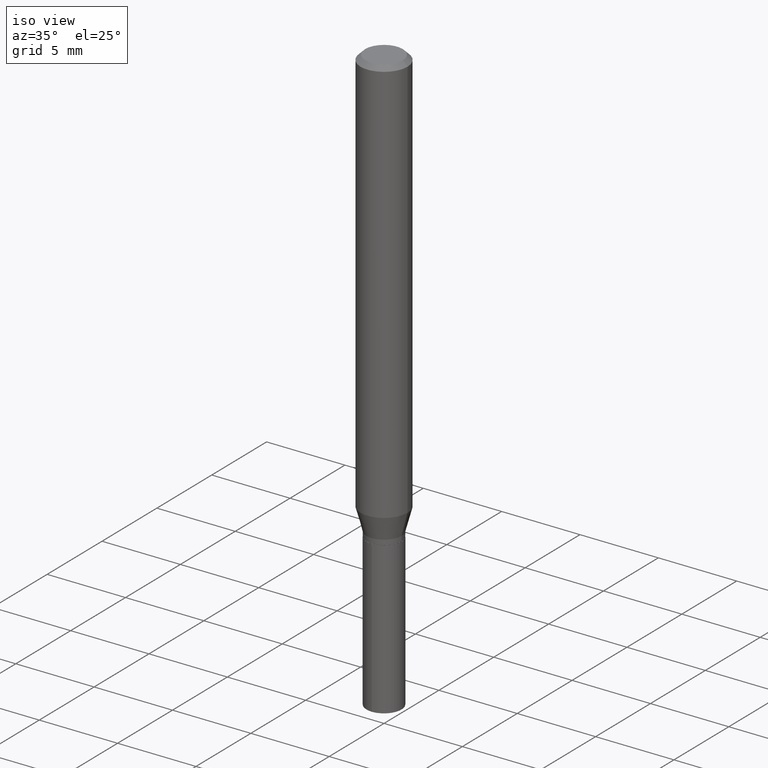
[diagram: clean part render]
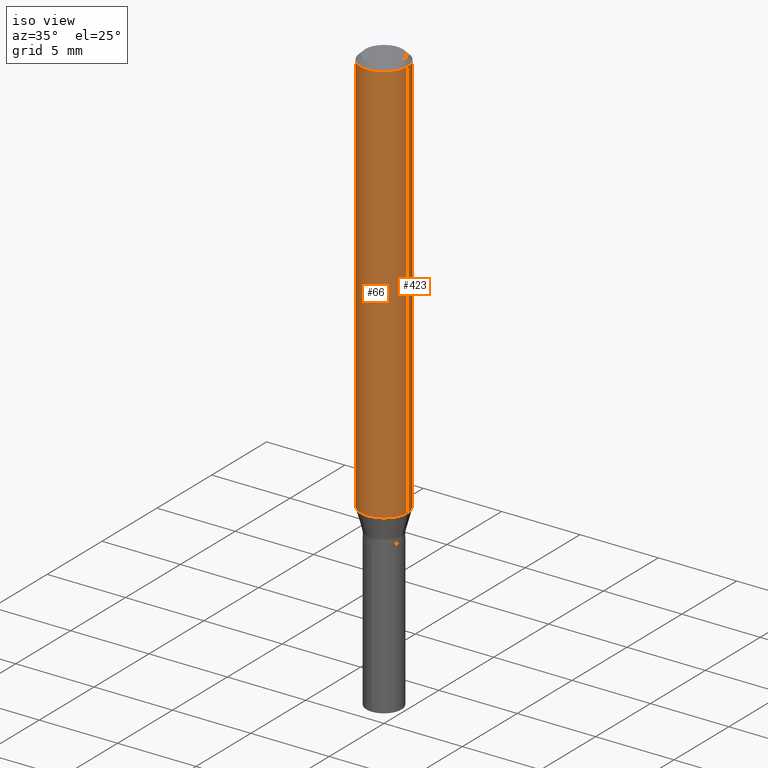
[diagram: same view with one multi-face feature highlighted, each face labeled with its STEP entity id]
A machine part, iso view. The highlighted faces form ONE feature: a constant-radius fillet chain: 2 tangent blend faces with common blend radius 1.4999 mm. The faces share edges in the B-rep.
Their STEP definitions:
[1] entity #423 (Cylinder):
#6 = VECTOR ( 'NONE', #318, 39.37007874015748143 ) ;
#7 = DIRECTION ( 'NONE',  ( 1.000000000000000000, -6.982962677686265133E-15, 0.000000000000000000 ) ) ;
#18 = CARTESIAN_POINT ( 'NONE',  ( -0.05905000000000006771, 4.195754854663396409E-16, -2.904631170795525045E-30 ) ) ;
#48 = EDGE_CURVE ( 'NONE', #110, #52, #165, .T. ) ;
#52 = VERTEX_POINT ( 'NONE', #252 ) ;
#71 = EDGE_LOOP ( 'NONE', ( #221, #79, #185, #160 ) ) ;
#73 = DIRECTION ( 'NONE',  ( 1.000000000000000000, -6.982962677686266711E-15, 0.000000000000000000 ) ) ;
#76 = CIRCLE ( 'NONE', #91, 0.05905000000000013016 ) ;
#79 = ORIENTED_EDGE ( 'NONE', *, *, #48, .T. ) ;
#87 = FACE_OUTER_BOUND ( 'NONE', #71, .T. ) ;
#91 = AXIS2_PLACEMENT_3D ( 'NONE', #138, #447, #7 ) ;
#93 = VERTEX_POINT ( 'NONE', #303 ) ;
#98 = EDGE_CURVE ( 'NONE', #334, #110, #76, .T. ) ;
#108 = EDGE_CURVE ( 'NONE', #93, #52, #371, .T. ) ;
#110 = VERTEX_POINT ( 'NONE', #217 ) ;
#125 = EDGE_CURVE ( 'NONE', #334, #93, #451, .T. ) ;
#138 = CARTESIAN_POINT ( 'NONE',  ( 2.506017220557920356E-29, -3.577928427574937870E-15, -1.024759430265331339 ) ) ;
#160 = ORIENTED_EDGE ( 'NONE', *, *, #125, .F. ) ;
#165 = LINE ( 'NONE', #18, #6 ) ;
#185 = ORIENTED_EDGE ( 'NONE', *, *, #108, .F. ) ;
#193 = DIRECTION ( 'NONE',  ( 1.000000000000000000, -6.982962677686266711E-15, 4.876176775795936353E-29 ) ) ;
#217 = CARTESIAN_POINT ( 'NONE',  ( -0.05905000000000013016, -3.158352942108598377E-15, -1.024759430265331339 ) ) ;
#221 = ORIENTED_EDGE ( 'NONE', *, *, #98, .T. ) ;
#222 = DIRECTION ( 'NONE',  ( -2.445468806185136597E-29, 3.491481338843145583E-15, 1.000000000000000000 ) ) ;
#235 = CARTESIAN_POINT ( 'NONE',  ( 0.000000000000000000, 0.000000000000000000, 0.000000000000000000 ) ) ;
#252 = CARTESIAN_POINT ( 'NONE',  ( -0.05904999999999999832, -1.390005925626997320E-15, -0.01181000000000007738 ) ) ;
#268 = AXIS2_PLACEMENT_3D ( 'NONE', #416, #222, #73 ) ;
#276 = CYLINDRICAL_SURFACE ( 'NONE', #429, 0.05905000000000006771 ) ;
#292 = DIRECTION ( 'NONE',  ( -2.445468806185136877E-29, 3.491481338843145188E-15, 1.000000000000000000 ) ) ;
#303 = CARTESIAN_POINT ( 'NONE',  ( 0.05904999999999999832, -4.535783407291118600E-16, -0.01181000000000007738 ) ) ;
#318 = DIRECTION ( 'NONE',  ( -2.445468806185136877E-29, 3.491481338843145188E-15, 1.000000000000000000 ) ) ;
#322 = VECTOR ( 'NONE', #292, 39.37007874015748143 ) ;
#334 = VERTEX_POINT ( 'NONE', #344 ) ;
#341 = CARTESIAN_POINT ( 'NONE',  ( 0.05905000000000006771, -4.123439461173745257E-16, 2.879382386107503723E-30 ) ) ;
#344 = CARTESIAN_POINT ( 'NONE',  ( 0.05905000000000013016, -3.990272373692312791E-15, -1.024759430265331339 ) ) ;
#347 = DIRECTION ( 'NONE',  ( -2.445468806185136597E-29, 3.491481338843145583E-15, 1.000000000000000000 ) ) ;
#371 = CIRCLE ( 'NONE', #268, 0.05904999999999999832 ) ;
#416 = CARTESIAN_POINT ( 'NONE',  ( 2.888098660104665518E-31, -4.123439461173782112E-17, -0.01181000000000007738 ) ) ;
#423 = ADVANCED_FACE ( 'NONE', ( #87 ), #276, .T. ) ;
#429 = AXIS2_PLACEMENT_3D ( 'NONE', #235, #347, #193 ) ;
#447 = DIRECTION ( 'NONE',  ( -2.445468806185136597E-29, 3.491481338843145583E-15, 1.000000000000000000 ) ) ;
#451 = LINE ( 'NONE', #341, #322 ) ;
[2] entity #66 (Cylinder):
#6 = VECTOR ( 'NONE', #318, 39.37007874015748143 ) ;
#12 = ORIENTED_EDGE ( 'NONE', *, *, #125, .T. ) ;
#15 = EDGE_CURVE ( 'NONE', #110, #334, #453, .T. ) ;
#16 = CARTESIAN_POINT ( 'NONE',  ( 2.506017220557920356E-29, -3.577928427574937870E-15, -1.024759430265331339 ) ) ;
#18 = CARTESIAN_POINT ( 'NONE',  ( -0.05905000000000006771, 4.195754854663396409E-16, -2.904631170795525045E-30 ) ) ;
#41 = DIRECTION ( 'NONE',  ( 1.000000000000000000, -6.982962677686266711E-15, 4.876176775795936353E-29 ) ) ;
#48 = EDGE_CURVE ( 'NONE', #110, #52, #165, .T. ) ;
#52 = VERTEX_POINT ( 'NONE', #252 ) ;
#65 = AXIS2_PLACEMENT_3D ( 'NONE', #479, #274, #41 ) ;
#66 = ADVANCED_FACE ( 'NONE', ( #207 ), #175, .T. ) ;
#67 = EDGE_LOOP ( 'NONE', ( #352, #408, #12, #283 ) ) ;
#93 = VERTEX_POINT ( 'NONE', #303 ) ;
#110 = VERTEX_POINT ( 'NONE', #217 ) ;
#125 = EDGE_CURVE ( 'NONE', #334, #93, #451, .T. ) ;
#165 = LINE ( 'NONE', #18, #6 ) ;
#175 = CYLINDRICAL_SURFACE ( 'NONE', #65, 0.05905000000000006771 ) ;
#181 = DIRECTION ( 'NONE',  ( -2.445468806185136597E-29, 3.491481338843145583E-15, 1.000000000000000000 ) ) ;
#194 = AXIS2_PLACEMENT_3D ( 'NONE', #295, #181, #488 ) ;
#207 = FACE_OUTER_BOUND ( 'NONE', #67, .T. ) ;
#217 = CARTESIAN_POINT ( 'NONE',  ( -0.05905000000000013016, -3.158352942108598377E-15, -1.024759430265331339 ) ) ;
#241 = CIRCLE ( 'NONE', #194, 0.05904999999999999832 ) ;
#252 = CARTESIAN_POINT ( 'NONE',  ( -0.05904999999999999832, -1.390005925626997320E-15, -0.01181000000000007738 ) ) ;
#274 = DIRECTION ( 'NONE',  ( -2.445468806185136597E-29, 3.491481338843145583E-15, 1.000000000000000000 ) ) ;
#283 = ORIENTED_EDGE ( 'NONE', *, *, #326, .F. ) ;
#292 = DIRECTION ( 'NONE',  ( -2.445468806185136877E-29, 3.491481338843145188E-15, 1.000000000000000000 ) ) ;
#295 = CARTESIAN_POINT ( 'NONE',  ( 2.888098660104665518E-31, -4.123439461173782112E-17, -0.01181000000000007738 ) ) ;
#303 = CARTESIAN_POINT ( 'NONE',  ( 0.05904999999999999832, -4.535783407291118600E-16, -0.01181000000000007738 ) ) ;
#318 = DIRECTION ( 'NONE',  ( -2.445468806185136877E-29, 3.491481338843145188E-15, 1.000000000000000000 ) ) ;
#322 = VECTOR ( 'NONE', #292, 39.37007874015748143 ) ;
#325 = DIRECTION ( 'NONE',  ( -2.445468806185136597E-29, 3.491481338843145583E-15, 1.000000000000000000 ) ) ;
#326 = EDGE_CURVE ( 'NONE', #52, #93, #241, .T. ) ;
#334 = VERTEX_POINT ( 'NONE', #344 ) ;
#341 = CARTESIAN_POINT ( 'NONE',  ( 0.05905000000000006771, -4.123439461173745257E-16, 2.879382386107503723E-30 ) ) ;
#344 = CARTESIAN_POINT ( 'NONE',  ( 0.05905000000000013016, -3.990272373692312791E-15, -1.024759430265331339 ) ) ;
#352 = ORIENTED_EDGE ( 'NONE', *, *, #48, .F. ) ;
#408 = ORIENTED_EDGE ( 'NONE', *, *, #15, .T. ) ;
#444 = AXIS2_PLACEMENT_3D ( 'NONE', #16, #325, #477 ) ;
#451 = LINE ( 'NONE', #341, #322 ) ;
#453 = CIRCLE ( 'NONE', #444, 0.05905000000000013016 ) ;
#477 = DIRECTION ( 'NONE',  ( 1.000000000000000000, -6.982962677686265133E-15, 0.000000000000000000 ) ) ;
#479 = CARTESIAN_POINT ( 'NONE',  ( 0.000000000000000000, 0.000000000000000000, 0.000000000000000000 ) ) ;
#488 = DIRECTION ( 'NONE',  ( 1.000000000000000000, -6.982962677686266711E-15, 0.000000000000000000 ) ) ;